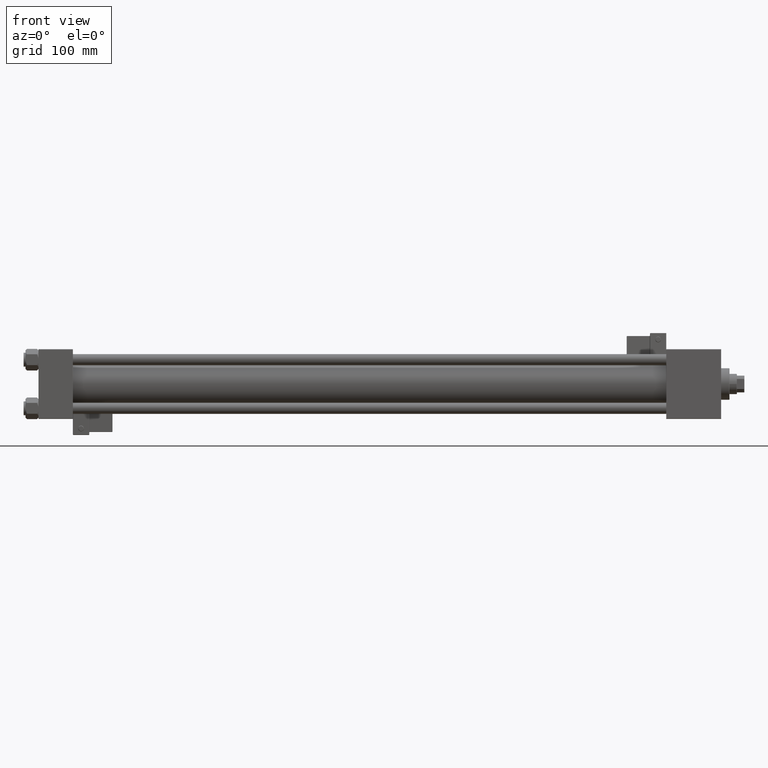
[diagram: clean part render]
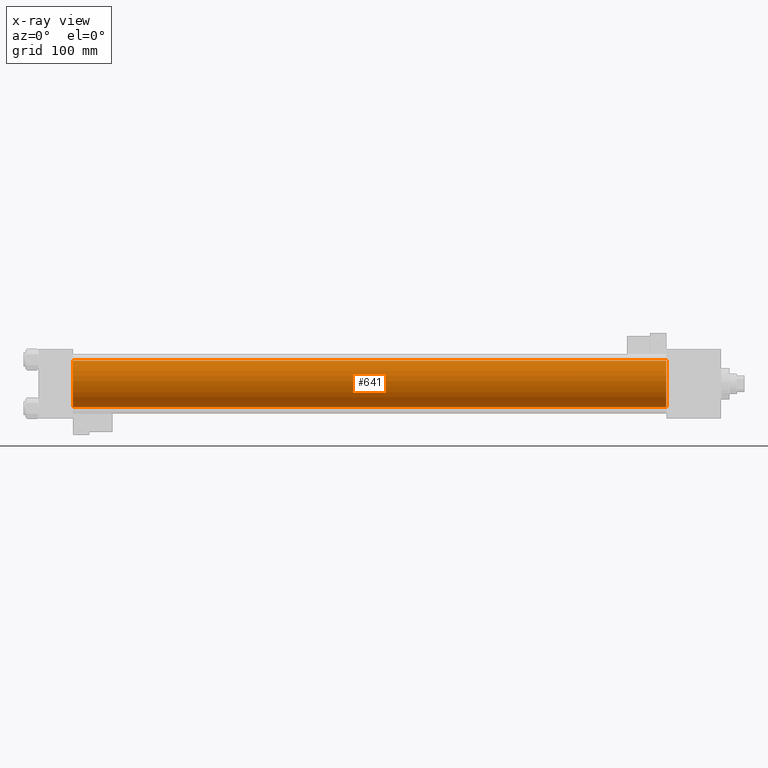
[diagram: x-ray — body ghosted, one internal face saturated and labeled with its STEP entity id]
A machine part, front view, then the same camera in x-ray: the body is ghosted and one INTERNAL B-rep face — a face not visible from any outside direction — is saturated and labeled: STEP entity #641.
In plain terms, the highlighted cylindrical surface (edge-blend (fillet) strip) has radius 25 mm, axis along (-1, -0, -0).
Its self-contained STEP definition (entity closure, byte-faithful):
#568 = CYLINDRICAL_SURFACE ( 'NONE', #15667, 25.00000000000000000 ) ;
#641 = ADVANCED_FACE ( 'NONE', ( #45478 ), #568, .F. ) ;
#2333 = CIRCLE ( 'NONE', #13368, 25.00000000000000000 ) ;
#4385 = DIRECTION ( 'NONE',  ( 1.000000000000000000, 0.000000000000000000, 0.000000000000000000 ) ) ;
#5870 = VERTEX_POINT ( 'NONE', #31173 ) ;
#5905 = VERTEX_POINT ( 'NONE', #41240 ) ;
#6458 = CARTESIAN_POINT ( 'NONE',  ( 675.0000000000000000, -2.602085213965210642E-15, 0.000000000000000000 ) ) ;
#6719 = DIRECTION ( 'NONE',  ( 1.000000000000000000, 0.000000000000000000, 0.000000000000000000 ) ) ;
#9069 = CARTESIAN_POINT ( 'NONE',  ( 675.0000000000000000, -2.602085213965210642E-15, 0.000000000000000000 ) ) ;
#9121 = CARTESIAN_POINT ( 'NONE',  ( 675.0000000000000000, 4.595317839031724996E-16, -25.00000000000000000 ) ) ;
#9955 = CARTESIAN_POINT ( 'NONE',  ( 37.00000000000000000, -2.602085213965210642E-15, 25.00000000000000000 ) ) ;
#10494 = EDGE_CURVE ( 'NONE', #5905, #41349, #39587, .T. ) ;
#12250 = DIRECTION ( 'NONE',  ( -1.000000000000000000, -0.000000000000000000, -0.000000000000000000 ) ) ;
#13368 = AXIS2_PLACEMENT_3D ( 'NONE', #6458, #6719, #43905 ) ;
#15021 = ORIENTED_EDGE ( 'NONE', *, *, #10494, .F. ) ;
#15667 = AXIS2_PLACEMENT_3D ( 'NONE', #9069, #12250, #37244 ) ;
#15890 = ORIENTED_EDGE ( 'NONE', *, *, #46770, .F. ) ;
#18281 = VERTEX_POINT ( 'NONE', #51755 ) ;
#18681 = EDGE_LOOP ( 'NONE', ( #35488, #49854, #15890, #15021 ) ) ;
#20075 = VECTOR ( 'NONE', #37029, 1000.000000000000000 ) ;
#20817 = LINE ( 'NONE', #9121, #20075 ) ;
#23843 = AXIS2_PLACEMENT_3D ( 'NONE', #24852, #4385, #37072 ) ;
#24852 = CARTESIAN_POINT ( 'NONE',  ( 37.00000000000000000, -2.602085213965210642E-15, 0.000000000000000000 ) ) ;
#31173 = CARTESIAN_POINT ( 'NONE',  ( 37.00000000000000000, 4.595317839031724996E-16, -25.00000000000000000 ) ) ;
#32026 = EDGE_CURVE ( 'NONE', #18281, #5870, #20817, .T. ) ;
#34045 = EDGE_CURVE ( 'NONE', #5905, #18281, #2333, .T. ) ;
#35488 = ORIENTED_EDGE ( 'NONE', *, *, #34045, .T. ) ;
#36902 = VECTOR ( 'NONE', #39845, 1000.000000000000000 ) ;
#37029 = DIRECTION ( 'NONE',  ( -1.000000000000000000, -0.000000000000000000, -0.000000000000000000 ) ) ;
#37072 = DIRECTION ( 'NONE',  ( 0.000000000000000000, 0.000000000000000000, -1.000000000000000000 ) ) ;
#37244 = DIRECTION ( 'NONE',  ( 0.000000000000000000, 0.000000000000000000, 1.000000000000000000 ) ) ;
#39329 = CARTESIAN_POINT ( 'NONE',  ( 675.0000000000000000, -2.602085213965210642E-15, 25.00000000000000000 ) ) ;
#39587 = LINE ( 'NONE', #39329, #36902 ) ;
#39845 = DIRECTION ( 'NONE',  ( -1.000000000000000000, -0.000000000000000000, -0.000000000000000000 ) ) ;
#41240 = CARTESIAN_POINT ( 'NONE',  ( 675.0000000000000000, -2.602085213965210642E-15, 25.00000000000000000 ) ) ;
#41349 = VERTEX_POINT ( 'NONE', #9955 ) ;
#43905 = DIRECTION ( 'NONE',  ( 0.000000000000000000, 0.000000000000000000, -1.000000000000000000 ) ) ;
#45478 = FACE_OUTER_BOUND ( 'NONE', #18681, .T. ) ;
#46752 = CIRCLE ( 'NONE', #23843, 25.00000000000000000 ) ;
#46770 = EDGE_CURVE ( 'NONE', #41349, #5870, #46752, .T. ) ;
#49854 = ORIENTED_EDGE ( 'NONE', *, *, #32026, .T. ) ;
#51755 = CARTESIAN_POINT ( 'NONE',  ( 675.0000000000000000, 4.595317839031724996E-16, -25.00000000000000000 ) ) ;